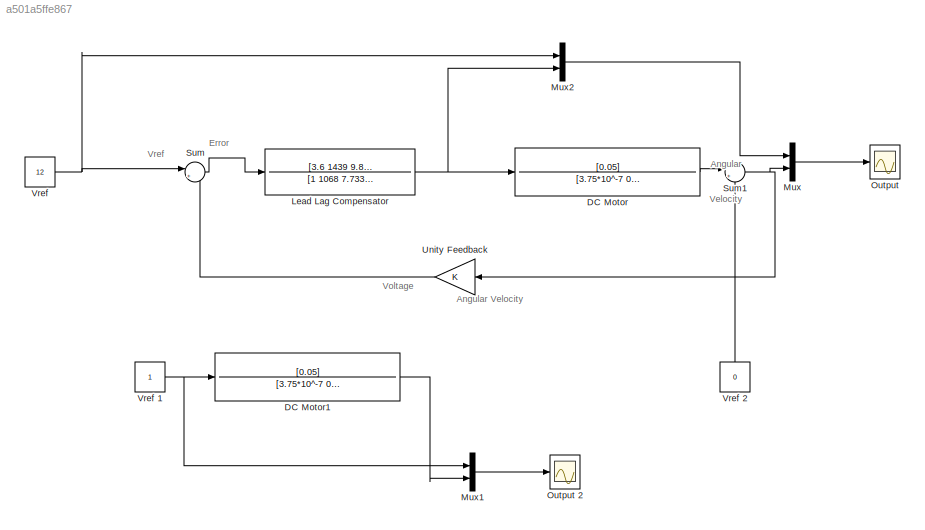
MODEL slx_a501a5ffe867
KIND model
BLOCK [TransferFcn] DC Motor
  Denominator = [3.75*10^-7 0.0001252 0.00255]
  Numerator = [0.05]
BLOCK [TransferFcn] DC Motor1
  Denominator = [3.75*10^-7 0.0001252 0.00255]
  Numerator = [0.05]
BLOCK [TransferFcn] Lead Lag Compensator 
  Denominator = [1 1068 7.733*10^4]
  Numerator = [3.6 1439 9.853*10^4]
BLOCK [Mux] Mux
  DisplayOption = bar
  Inputs = 2
  Ports = [2, 1]
BLOCK [Mux] Mux1
  DisplayOption = bar
  Inputs = 2
  Ports = [2, 1]
BLOCK [Mux] Mux2
  DisplayOption = bar
  Inputs = 2
  Ports = [2, 1]
BLOCK [Scope] Output 
  DataFormat = StructureWithTime
  Floating = off
  NumInputPorts = 1
  Ports = [1]
  SampleTime = 0
  ShowLegends = off
BLOCK [Scope] Output 2
  DataFormat = StructureWithTime
  Floating = off
  NumInputPorts = 1
  Ports = [1]
  SampleTime = 0
  SaveName = ScopeData2
  ShowLegends = off
BLOCK [Sum] Sum
  IconShape = round
  InputSameDT = off
  Inputs = |+-
  OutDataTypeStr = Inherit: Inherit via internal rule
  Ports = [2, 1]
  SaturateOnIntegerOverflow = off
BLOCK [Sum] Sum1
  IconShape = round
  InputSameDT = off
  Inputs = |+-
  OutDataTypeStr = Inherit: Inherit via internal rule
  Ports = [2, 1]
  SaturateOnIntegerOverflow = off
BLOCK [Gain] Unity Feedback
  OutDataTypeStr = Inherit: Inherit via internal rule
  ParamDataTypeStr = Inherit: Inherit via internal rule
  SaturateOnIntegerOverflow = off
BLOCK [Constant] Vref 
  Value = 12
BLOCK [Constant] Vref 1
BLOCK [Constant] Vref 2
  Value = 0
ANNOTATION (root): Angular Velocity
ANNOTATION (root): Error
ANNOTATION (root): Voltage
ANNOTATION (root): Vref
LINE DC Motor1:1 -> Mux1:2
LINE DC Motor:1 -> Sum1:1
NET Lead Lag Compensator :1 -> DC Motor:1, Mux2:2
LINE Mux1:1 -> Output 2:1
LINE Mux2:1 -> Mux:1
LINE Mux:1 -> Output :1
NET Sum1:1 -> Mux:2, Unity Feedback:1
LINE Sum:1 -> Lead Lag Compensator :1
LINE Unity Feedback:1 -> Sum:2
NET Vref 1:1 -> DC Motor1:1, Mux1:1
LINE Vref 2:1 -> Sum1:2
NET Vref :1 -> Mux2:1, Sum:1
note: NET lines group one-source signal fan-out (src -> all destinations, sorted); 1:1 wires keep LINE
